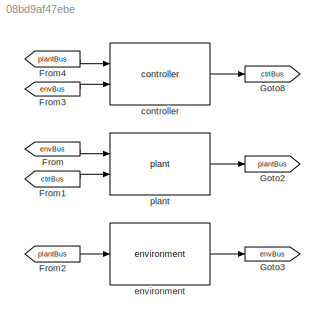
MODEL slx_08bd9af47ebe
KIND model
CONFIG AbsTol = auto
CONFIG EnableMultiTasking = off
CONFIG FixedStep = .01
CONFIG MaxStep = auto
CONFIG MinStep = auto
CONFIG RelTol = 1e-3
CONFIG SampleTimeConstraint = Unconstrained
CONFIG Solver = FixedStepAuto
CONFIG SolverName = FixedStepAuto
CONFIG StartTime = 0.0
CONFIG StopTime = Env.simDuration.Value
BLOCK [From] From
  GotoTag = envBus
BLOCK [From] From1
  GotoTag = ctrlBus
BLOCK [From] From2
  GotoTag = plantBus
BLOCK [From] From3
  GotoTag = envBus
BLOCK [From] From4
  GotoTag = plantBus
BLOCK [Goto] Goto2
  GotoTag = plantBus
BLOCK [Goto] Goto3
  GotoTag = envBus
BLOCK [Goto] Goto8
  GotoTag = ctrlBus
BLOCK [Reference] controller  REF=flightController_cl/controller
  Ports = [2, 1]
  SourceBlock = flightController_cl/controller
  SourceType = SubSystem
BLOCK [Reference] environment  REF=environment_cl/environment  (lib defined in slx_47dae840ee41)
  Ports = [1, 1]
  SourceBlock = environment_cl/environment
  SourceType = SubSystem
BLOCK [Reference] plant  REF=plant_cl/plant  (lib defined in slx_16586b0fd0ad)
  Ports = [2, 1]
  SourceBlock = plant_cl/plant
  SourceType = SubSystem
LINE From1:1 -> plant:2
LINE From2:1 -> environment:1
LINE From3:1 -> controller:2
LINE From4:1 -> controller:1
LINE From:1 -> plant:1
LINE controller:1 -> Goto8:1
LINE environment:1 -> Goto3:1
LINE plant:1 -> Goto2:1
